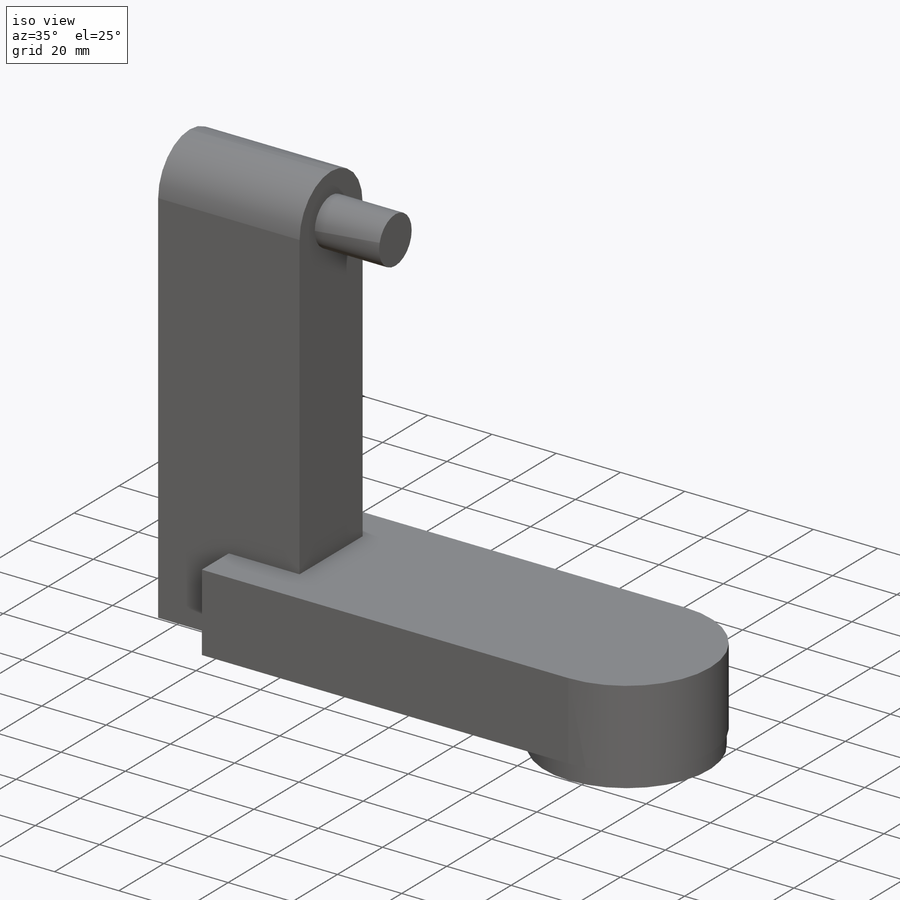
[diagram: iso view]
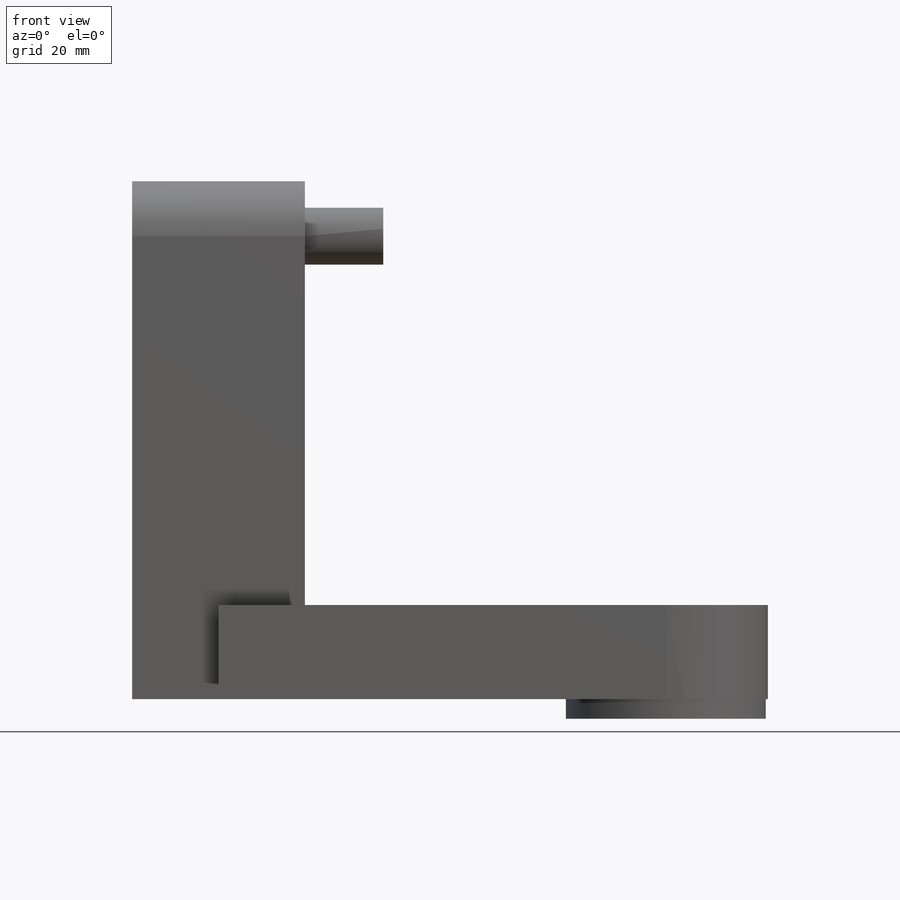
[diagram: front view]
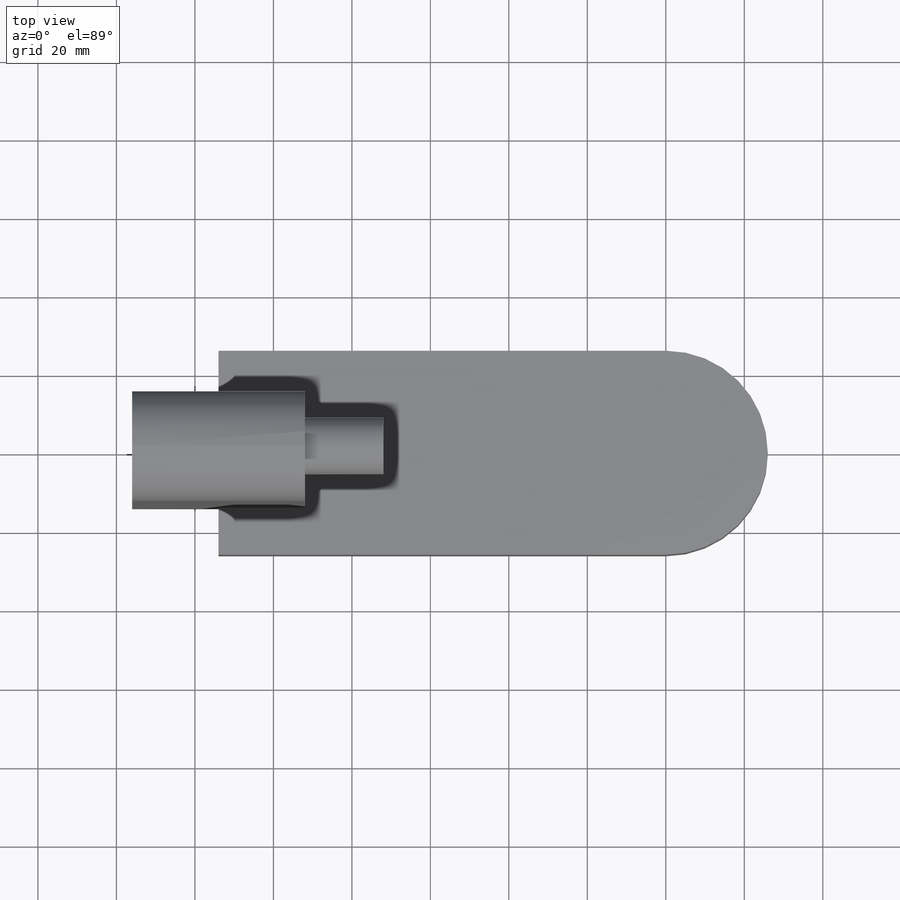
[diagram: top view]
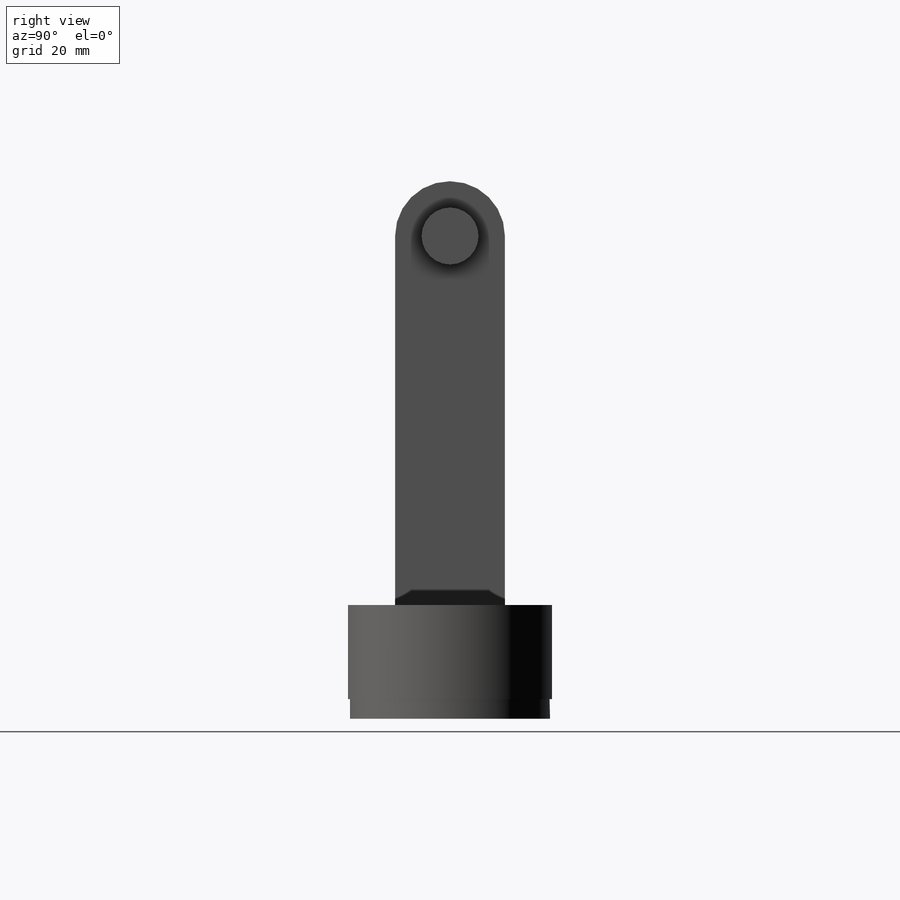
[diagram: right view]
SOLIDWORKS PART (.sldprt)
format: sldprt  version: not decoded by parser v0  size: 212,480 bytes
history: native  units: mm
features: sketch x6, extrude x4, plane x4, fillet x2, material x1 (+11 scaffold rows collapsed)
feature tree (28):
  scaffold x11  (default folders/planes/origin — collapsed)
  material  "Material <not specified>"
  sketch  "Sketch1"  dims[c1.D1=52.0mm c1.D3=52.0mm c2.D1=135.0mm c2.D2=52.0mm c2.D3=114.0mm]
  extrude  "Boss-Extrude2"  Depth=24mm
  sketch  "Sketch2"  dims[D1=~22.20722mm]
  extrude  "Boss-Extrude3"  Depth=5mm
  sketch  "Sketch3"  dims[D1=44.0mm D2=28.0mm]
  extrude  "Boss-Extrude4"  Depth=132mm
  fillet  "Fillet2"  Radius=14mm
  fillet  "Fillet5"  Radius=14mm
  plane  "Plane1"
  sketch  "Sketch4"  dims[D1=~5.843997mm]
  extrude  "Boss-Extrude5"  Depth=20mm
  sketch  "Sketch5"
  plane  "Plane3"
  plane  "Plane5"
  plane  "Plane6"
  sketch  "Sketch6"
decode coverage: 10 of 12 modeling features carry decoded parameters
note: ~ marks probable driven/reference dimensions
note: suppression state not decoded; provenance and decode notes live in map.json
